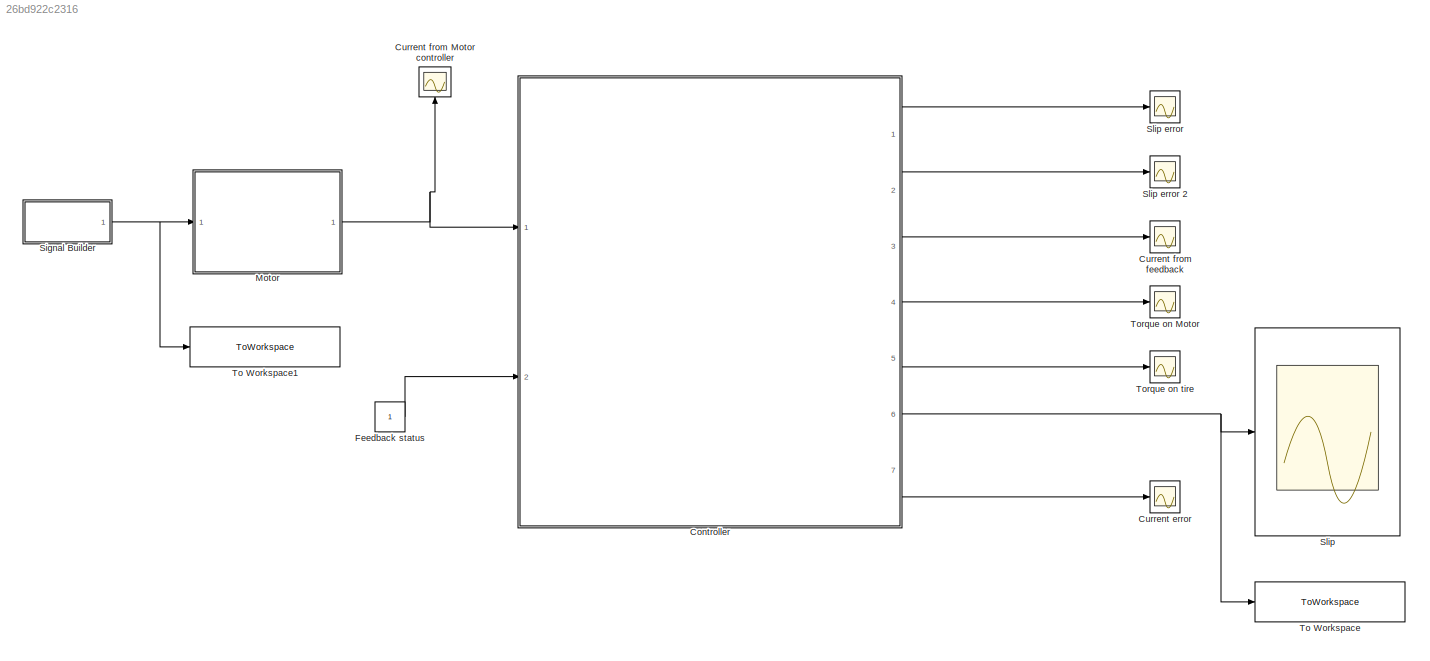
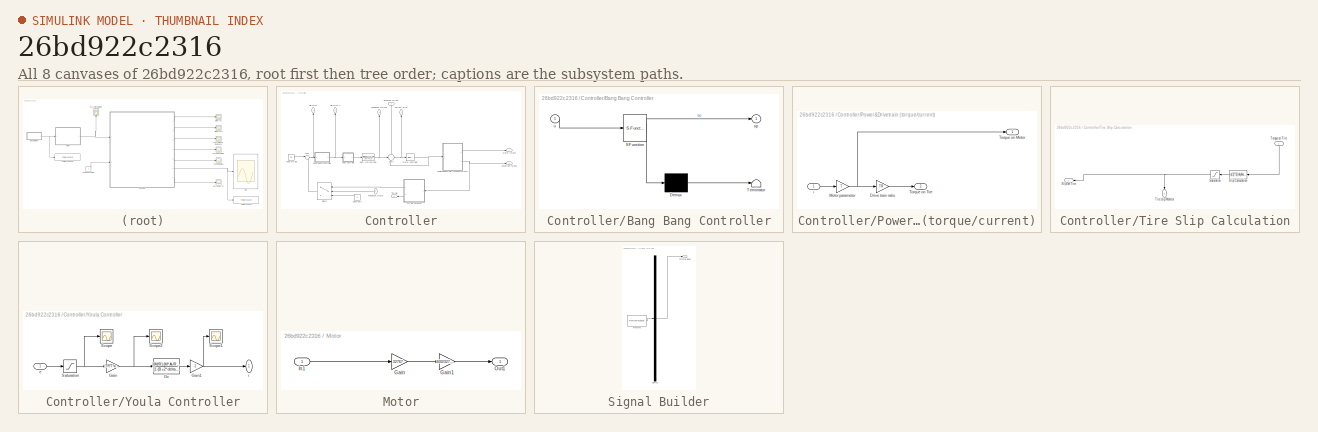
[diagram: thumbnail index - all 8 canvases of the model, root first then tree order]
MODEL slx_26bd922c2316
KIND model
CONFIG AbsTol = auto
CONFIG FixedStep = auto
CONFIG MaxStep = auto
CONFIG MinStep = auto
CONFIG PreLoadFcn = load('Traction_Control_parameter.mat')
CONFIG RelTol = 1e-3
CONFIG SampleTimeConstraint = Unconstrained
CONFIG Solver = VariableStepAuto
CONFIG SolverMode = Auto
CONFIG SolverName = VariableStepAuto
CONFIG StartTime = 0.0
CONFIG StopTime = 20
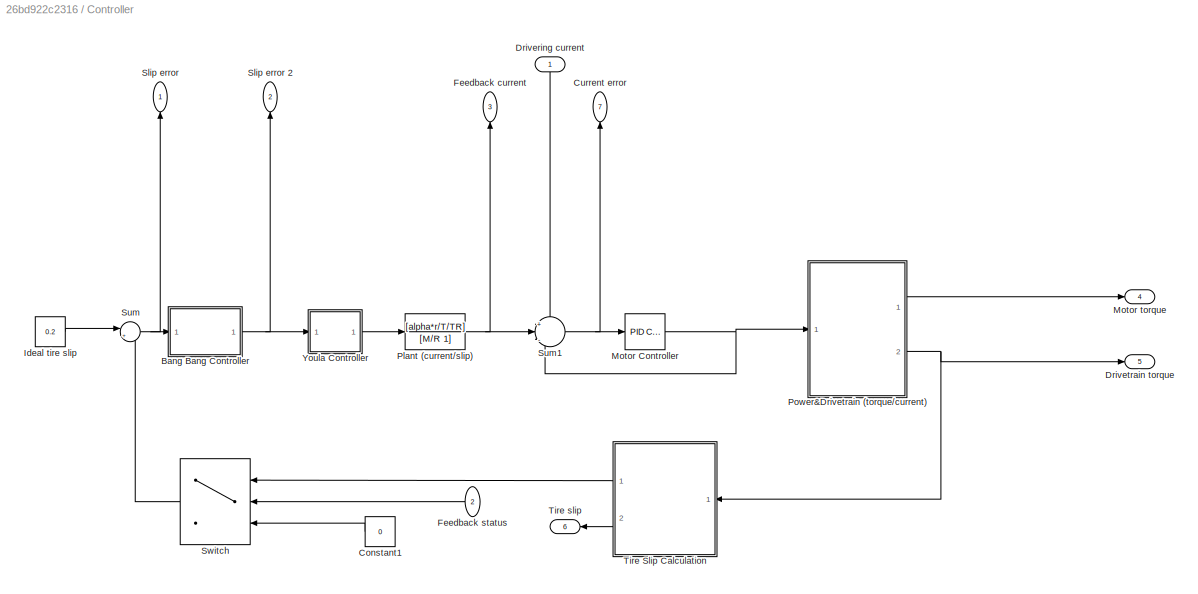
BLOCK [SubSystem] Controller
  Ports = [2, 7]
  RequestExecContextInheritance = off
  ShowPortLabels = none
  Variant = off
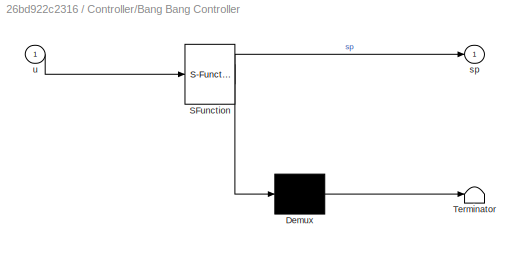
BLOCK [SubSystem] Controller/Bang Bang Controller
  ErrorFcn = Stateflow.Translate.translate
  PermitHierarchicalResolution = ExplicitOnly
  Ports = [1, 1]
  RequestExecContextInheritance = off
  SFBlockType = MATLAB Function
  TreatAsAtomicUnit = on
  Variant = off
BLOCK [Demux] Controller/Bang Bang Controller/ Demux 
  Outputs = 1
  Ports = [1, 1]
BLOCK [S-Function] Controller/Bang Bang Controller/ SFunction 
  EnableBusSupport = on
  FunctionName = sf_sfun
  PortCounts = [1 2]
  Ports = [1, 2]
  SFunctionDeploymentMode = off
  Tag = Stateflow S-Function Traction_Control_main_code_Youla 2
BLOCK [Terminator] Controller/Bang Bang Controller/ Terminator 
BLOCK [Outport] Controller/Bang Bang Controller/sp
  IconDisplay = Port number
BLOCK [Inport] Controller/Bang Bang Controller/u
  IconDisplay = Port number
BLOCK [Constant] Controller/Constant1
  Value = 0
BLOCK [Outport] Controller/Current error
  IconDisplay = Port number
  Port = 7
BLOCK [Inport] Controller/Drivering current
  IconDisplay = Port number
BLOCK [Outport] Controller/Drivetrain torque
  IconDisplay = Port number
  Port = 5
BLOCK [Outport] Controller/Feedback current
  IconDisplay = Port number
  Port = 3
BLOCK [Inport] Controller/Feedback status
  IconDisplay = Port number
  Port = 2
BLOCK [Constant] Controller/Ideal tire slip
  Value = 0.2
BLOCK [Reference] Controller/Motor Controller  REF=simulink/Continuous/PID Controller
  Ports = [1, 1]
  SourceBlock = simulink/Continuous/PID Controller
  SourceType = PID 1dof
BLOCK [Outport] Controller/Motor torque
  IconDisplay = Port number
  Port = 4
BLOCK [TransferFcn] Controller/Plant (current//slip)
  Denominator = [M/R 1]
  Numerator = [alpha*r/T/TR]
BLOCK [SubSystem] Controller/Power&Drivetrain (torque//current)
  Ports = [1, 2]
  RequestExecContextInheritance = off
  Variant = off
BLOCK [Gain] Controller/Power&Drivetrain (torque//current)/Drive train ratio
  Gain = TR
  OutDataTypeStr = Inherit: Inherit via internal rule
  ParamDataTypeStr = Inherit: Inherit via internal rule
  SaturateOnIntegerOverflow = off
BLOCK [Gain] Controller/Power&Drivetrain (torque//current)/Motor parameter
  Gain = T
  OutDataTypeStr = Inherit: Inherit via internal rule
  ParamDataTypeStr = Inherit: Inherit via internal rule
  SaturateOnIntegerOverflow = off
BLOCK [Outport] Controller/Power&Drivetrain (torque//current)/Torque on Motor
  IconDisplay = Port number
BLOCK [Outport] Controller/Power&Drivetrain (torque//current)/Torque on Tire
  IconDisplay = Port number
  Port = 2
BLOCK [Inport] Controller/Power&Drivetrain (torque//current)/i
  IconDisplay = Port number
BLOCK [Outport] Controller/Slip error
  IconDisplay = Port number
BLOCK [Outport] Controller/Slip error 2
  IconDisplay = Port number
  Port = 2
BLOCK [Sum] Controller/Sum
  IconShape = round
  InputSameDT = off
  Inputs = |+-
  OutDataTypeStr = Inherit: Inherit via internal rule
  Ports = [2, 1]
  SaturateOnIntegerOverflow = off
BLOCK [Sum] Controller/Sum1
  IconShape = round
  InputSameDT = off
  Inputs = +|-|-
  OutDataTypeStr = Inherit: Inherit via internal rule
  Ports = [3, 1]
  SaturateOnIntegerOverflow = off
BLOCK [Switch] Controller/Switch
  Criteria = u2 > Threshold
  InputSameDT = off
  SaturateOnIntegerOverflow = off
BLOCK [SubSystem] Controller/Tire Slip Calculation
  Ports = [1, 2]
  RequestExecContextInheritance = off
  Variant = off
BLOCK [Saturate] Controller/Tire Slip Calculation/Saturation
  InputPortMap = u0
  LowerLimit = -0
  Ports = [1, 1]
  UpperLimit = 1
BLOCK [Fcn] Controller/Tire Slip Calculation/Slip Calculation
  Expr = u(1)*1/(alpha*r)
BLOCK [Outport] Controller/Tire Slip Calculation/Slip on Tire
  IconDisplay = Port number
BLOCK [Outport] Controller/Tire Slip Calculation/Tire slip Monitor
  IconDisplay = Port number
  Port = 2
BLOCK [Inport] Controller/Tire Slip Calculation/Torque on Tire
  IconDisplay = Port number
BLOCK [Outport] Controller/Tire slip
  IconDisplay = Port number
  Port = 6
BLOCK [SubSystem] Controller/Youla Controller
  Ports = [1, 1]
  RequestExecContextInheritance = off
  Variant = off
BLOCK [Gain] Controller/Youla Controller/Gain
  Gain = (TR*T*wn*wn)/(alpha*r)
  OutDataTypeStr = Inherit: Inherit via internal rule
  ParamDataTypeStr = Inherit: Inherit via internal rule
  SaturateOnIntegerOverflow = off
BLOCK [Gain] Controller/Youla Controller/Gain1
  Gain = -1
  OutDataTypeStr = Inherit: Inherit via internal rule
  ParamDataTypeStr = Inherit: Inherit via internal rule
  SaturateOnIntegerOverflow = off
BLOCK [TransferFcn] Controller/Youla Controller/Gc
  Denominator = [1 (B+2*delta*wn)]
  Numerator = [(M/R) (M*A/R)]
BLOCK [Saturate] Controller/Youla Controller/Saturation
  InputPortMap = u0
  LowerLimit = -1
  Ports = [1, 1]
  UpperLimit = 0
BLOCK [Scope] Controller/Youla Controller/Scope
  Ports = [1]
  ScopeSpecificationString = Simulink.scopes.TimeScopeBlockCfg('CurrentConfiguration', extmgr.ConfigurationSet(extmgr.Configuration('Core','General UI',true),extmgr.Configuration('Core','Source UI',true),extmgr.Configuration('Sources','WiredSimulink',true,'DataLoggingVariableName','ScopeData1'),extmgr.Configuration('Visuals','Time Domain',true,'SerializedDisplays',{struct('MinYLimReal','-0.12332','MaxYLimReal','0.0137','YLabe...<+1422ch>
BLOCK [Scope] Controller/Youla Controller/Scope1
  Ports = [1]
  ScopeSpecificationString = Simulink.scopes.TimeScopeBlockCfg('CurrentConfiguration', extmgr.ConfigurationSet(extmgr.Configuration('Core','General UI',true),extmgr.Configuration('Core','Source UI',true),extmgr.Configuration('Sources','WiredSimulink',true,'DataLoggingVariableName','ScopeData2'),extmgr.Configuration('Visuals','Time Domain',true,'SerializedDisplays',{struct('MinYLimReal','-0.0744','MaxYLimReal','0.66956','YLabe...<+1417ch>
BLOCK [Scope] Controller/Youla Controller/Scope2
  Ports = [1]
  ScopeSpecificationString = Simulink.scopes.TimeScopeBlockCfg('CurrentConfiguration', extmgr.ConfigurationSet(extmgr.Configuration('Core','General UI',true),extmgr.Configuration('Core','Source UI',true),extmgr.Configuration('Sources','WiredSimulink',true,'DataLoggingVariableName','ScopeData3'),extmgr.Configuration('Visuals','Time Domain',true,'SerializedDisplays',{struct('MinYLimReal','-31.81745','MaxYLimReal','3.53527','YLa...<+1422ch>
BLOCK [Inport] Controller/Youla Controller/e
  IconDisplay = Port number
BLOCK [Outport] Controller/Youla Controller/r
  IconDisplay = Port number
BLOCK [Scope] Current error
  Ports = [1]
  ScopeSpecificationString = Simulink.scopes.TimeScopeBlockCfg('CurrentConfiguration', extmgr.ConfigurationSet(extmgr.Configuration('Core','General UI',true),extmgr.Configuration('Core','Source UI',true),extmgr.Configuration('Sources','WiredSimulink',true,'DataLoggingVariableName','ScopeData1'),extmgr.Configuration('Visuals','Time Domain',true,'SerializedDisplays',{struct('MinYLimReal','-124.82214','MaxYLimReal','347.20246','...<+1440ch>
BLOCK [Scope] Current from Motor controller
  Ports = [1]
  ScopeSpecificationString = Simulink.scopes.TimeScopeBlockCfg('CurrentConfiguration', extmgr.ConfigurationSet(extmgr.Configuration('Core','General UI',true),extmgr.Configuration('Core','Source UI',true),extmgr.Configuration('Sources','WiredSimulink',true,'DataLoggingVariableName','ScopeData6'),extmgr.Configuration('Visuals','Time Domain',true,'SerializedDisplays',{struct('MinYLimReal','-75.00000','MaxYLimReal','675.00000','Y...<+1429ch>
BLOCK [Scope] Current from feedback
  Ports = [1]
  ScopeSpecificationString = Simulink.scopes.TimeScopeBlockCfg('CurrentConfiguration', extmgr.ConfigurationSet(extmgr.Configuration('Core','General UI',true),extmgr.Configuration('Core','Source UI',true),extmgr.Configuration('Sources','WiredSimulink',true,'DataLoggingVariableName','ScopeData5'),extmgr.Configuration('Visuals','Time Domain',true,'SerializedDisplays',{struct('MinYLimReal','-19.40608','MaxYLimReal','174.65475','Y...<+1436ch>
BLOCK [Constant] Feedback status
BLOCK [SubSystem] Motor
  Ports = [1, 1]
  RequestExecContextInheritance = off
  ShowPortLabels = none
  Variant = off
BLOCK [Gain] Motor/Gain
  Gain = 32767
  OutDataTypeStr = Inherit: Inherit via internal rule
  ParamDataTypeStr = Inherit: Inherit via internal rule
  SaturateOnIntegerOverflow = off
BLOCK [Gain] Motor/Gain1
  Gain = 600/32767
  OutDataTypeStr = Inherit: Inherit via internal rule
  ParamDataTypeStr = Inherit: Inherit via internal rule
  SaturateOnIntegerOverflow = off
BLOCK [Inport] Motor/In1
  IconDisplay = Port number
BLOCK [Outport] Motor/Out1
  IconDisplay = Port number
BLOCK [SubSystem] Signal Builder
  ClipboardFcn = sigbuilder_block('clipboard');
  CloseFcn = sigbuilder_block('close');
  ContinueFcn = sigbuilder_block('continue');
  CopyFcn = sigbuilder_block('copy');
  DeleteFcn = sigbuilder_block('delete');
  LoadFcn = sigbuilder_block('load');
  MaskHideContents = on
  ModelCloseFcn = sigbuilder_block('modelClose');
  NameChangeFcn = sigbuilder_block('namechange');
  OpenFcn = sigbuilder_block('open',[118.5 71 550.5 362.5 ]);
  PauseFcn = sigbuilder_block('pause');
  Ports = [0, 1]
  PreSaveFcn = sigbuilder_block('preSave');
  RequestExecContextInheritance = off
  ShowPortLabels = none
  StartFcn = sigbuilder_block('start');
  StopFcn = sigbuilder_block('stop');
  Tag = STV Subsys
  Variant = off
BLOCK [Demux] Signal Builder/Demux
  Outputs = 1
  Ports = [1, 1]
  Tag = STV Demux
BLOCK [FromWorkspace] Signal Builder/FromWs
  SampleTime = 0
  Tag = STV FromWs
  VariableName = tuvar
  ZeroCross = on
BLOCK [Outport] Signal Builder/Throttle input
  IconDisplay = Port number
  Tag = STV Outport
BLOCK [Scope] Slip
  Ports = [1]
  ScopeSpecificationString = Simulink.scopes.TimeScopeBlockCfg('CurrentConfiguration', extmgr.ConfigurationSet(extmgr.Configuration('Core','General UI',true),extmgr.Configuration('Core','Source UI',true),extmgr.Configuration('Sources','WiredSimulink',true,'DataLoggingVariableName','ScopeData1'),extmgr.Configuration('Visuals','Time Domain',true,'SerializedDisplays',{struct('MinYLimReal','-0.0387','MaxYLimReal','0.34832','YLabe...<+1456ch>
BLOCK [Scope] Slip error
  Ports = [1]
  ScopeSpecificationString = Simulink.scopes.TimeScopeBlockCfg('CurrentConfiguration', extmgr.ConfigurationSet(extmgr.Configuration('Core','General UI',true),extmgr.Configuration('Core','Source UI',true),extmgr.Configuration('Sources','WiredSimulink',true,'DataLoggingVariableName','ScopeData3'),extmgr.Configuration('Visuals','Time Domain',true,'SerializedDisplays',{struct('MinYLimReal','-0.14832','MaxYLimReal','0.2387','YLabe...<+1422ch>
BLOCK [Scope] Slip error 2
  Ports = [1]
  ScopeSpecificationString = Simulink.scopes.TimeScopeBlockCfg('CurrentConfiguration', extmgr.ConfigurationSet(extmgr.Configuration('Core','General UI',true),extmgr.Configuration('Core','Source UI',true),extmgr.Configuration('Sources','WiredSimulink',true,'DataLoggingVariableName','ScopeData4'),extmgr.Configuration('Visuals','Time Domain',true,'SerializedDisplays',{struct('MinYLimReal','-0.12332','MaxYLimReal','0.0137','YLabe...<+1425ch>
BLOCK [ToWorkspace] To Workspace
  FixptAsFi = on
  MaxDataPoints = inf
  Ports = [1]
  SampleTime = -1
  Save2DSignal = 3-D array (concatenate along third dimension)
  SaveFormat = Timeseries
  VariableName = real_time_slip
BLOCK [ToWorkspace] To Workspace1
  FixptAsFi = on
  MaxDataPoints = inf
  Ports = [1]
  SampleTime = -1
  Save2DSignal = 3-D array (concatenate along third dimension)
  SaveFormat = Timeseries
  VariableName = throttle_input
BLOCK [Scope] Torque on Motor
  Ports = [1]
  ScopeSpecificationString = Simulink.scopes.TimeScopeBlockCfg('CurrentConfiguration', extmgr.ConfigurationSet(extmgr.Configuration('Core','General UI',true),extmgr.Configuration('Core','Source UI',true),extmgr.Configuration('Sources','WiredSimulink',true,'DataLoggingVariableName','ScopeData2'),extmgr.Configuration('Visuals','Time Domain',true,'SerializedDisplays',{struct('MinYLimReal','-26.21265','MaxYLimReal','72.91252','YL...<+1418ch>
BLOCK [Scope] Torque on tire
  Ports = [1]
  ScopeSpecificationString = Simulink.scopes.TimeScopeBlockCfg('CurrentConfiguration', extmgr.ConfigurationSet(extmgr.Configuration('Core','General UI',true),extmgr.Configuration('Core','Source UI',true),extmgr.Configuration('Sources','WiredSimulink',true),extmgr.Configuration('Visuals','Time Domain',true,'SerializedDisplays',{struct('MinYLimReal','-120.57818','MaxYLimReal','335.39758','YLabelReal','','MinYLimMag',' 0.00000',...<+1401ch>
NET Controller/Bang Bang Controller:1 -> Controller/Slip error 2:1, Controller/Youla Controller:1
LINE Controller/Constant1:1 -> Controller/Switch:3
LINE Controller/Drivering current:1 -> Controller/Sum1:1
LINE Controller/Feedback status:1 -> Controller/Switch:2
LINE Controller/Ideal tire slip:1 -> Controller/Sum:1
NET Controller/Motor Controller:1 -> Controller/Power&Drivetrain (torque//current):1, Controller/Sum1:3
NET Controller/Plant (current//slip):1 -> Controller/Feedback current:1, Controller/Sum1:2
LINE Controller/Power&Drivetrain (torque//current)/Drive train ratio:1 -> Controller/Power&Drivetrain (torque//current)/Torque on Tire:1
NET Controller/Power&Drivetrain (torque//current)/Motor parameter:1 -> Controller/Power&Drivetrain (torque//current)/Drive train ratio:1, Controller/Power&Drivetrain (torque//current)/Torque on Motor:1
LINE Controller/Power&Drivetrain (torque//current)/i:1 -> Controller/Power&Drivetrain (torque//current)/Motor parameter:1
LINE Controller/Power&Drivetrain (torque//current):1 -> Controller/Motor torque:1
NET Controller/Power&Drivetrain (torque//current):2 -> Controller/Drivetrain torque:1, Controller/Tire Slip Calculation:1
NET Controller/Sum1:1 -> Controller/Current error:1, Controller/Motor Controller:1
NET Controller/Sum:1 -> Controller/Bang Bang Controller:1, Controller/Slip error:1
LINE Controller/Switch:1 -> Controller/Sum:2
NET Controller/Tire Slip Calculation/Saturation:1 -> Controller/Tire Slip Calculation/Slip on Tire:1, Controller/Tire Slip Calculation/Tire slip Monitor:1
LINE Controller/Tire Slip Calculation/Slip Calculation:1 -> Controller/Tire Slip Calculation/Saturation:1
LINE Controller/Tire Slip Calculation/Torque on Tire:1 -> Controller/Tire Slip Calculation/Slip Calculation:1
LINE Controller/Tire Slip Calculation:1 -> Controller/Switch:1
LINE Controller/Tire Slip Calculation:2 -> Controller/Tire slip:1
NET Controller/Youla Controller/Gain1:1 -> Controller/Youla Controller/Scope1:1, Controller/Youla Controller/r:1
NET Controller/Youla Controller/Gain:1 -> Controller/Youla Controller/Gc:1, Controller/Youla Controller/Scope2:1
LINE Controller/Youla Controller/Gc:1 -> Controller/Youla Controller/Gain1:1
NET Controller/Youla Controller/Saturation:1 -> Controller/Youla Controller/Gain:1, Controller/Youla Controller/Scope:1
LINE Controller/Youla Controller/e:1 -> Controller/Youla Controller/Saturation:1
LINE Controller/Youla Controller:1 -> Controller/Plant (current//slip):1
LINE Controller:1 -> Slip error:1
LINE Controller:2 -> Slip error 2:1
LINE Controller:3 -> Current from feedback:1
LINE Controller:4 -> Torque on Motor:1
LINE Controller:5 -> Torque on tire:1
NET Controller:6 -> Slip:1, To Workspace:1
LINE Controller:7 -> Current error:1
LINE Feedback status:1 -> Controller:2
LINE Motor/Gain1:1 -> Motor/Out1:1
LINE Motor/Gain:1 -> Motor/Gain1:1
LINE Motor/In1:1 -> Motor/Gain:1
NET Motor:1 -> Controller:1, Current from Motor controller:1
NET Signal Builder:1 -> Motor:1, To Workspace1:1
note: NET lines group one-source signal fan-out (src -> all destinations, sorted); 1:1 wires keep LINE
CHART Controller/Bang Bang Controller states=1 transitions=1
  STATE_LABEL 'eML_blk_kernel()'
  STATE_LABEL 'SCRIPT:\nfunction sp = fcn(u)\n%Only active while slip signal is negtive \nif u<0\n    u_1 = u;\nelse \n    u_1 = 0;\nend\n\nsp = u_1;'
